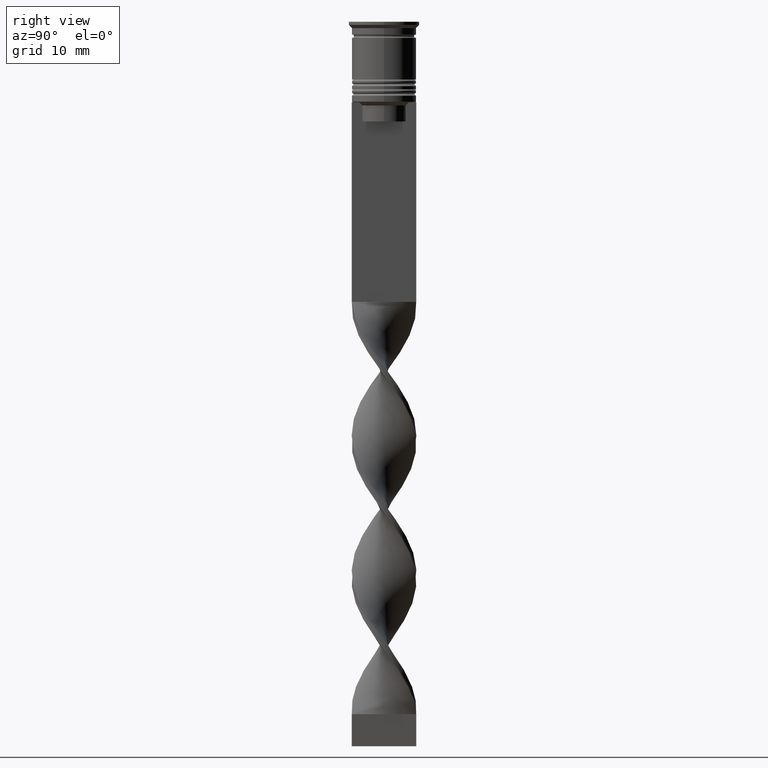
[diagram: clean part render]
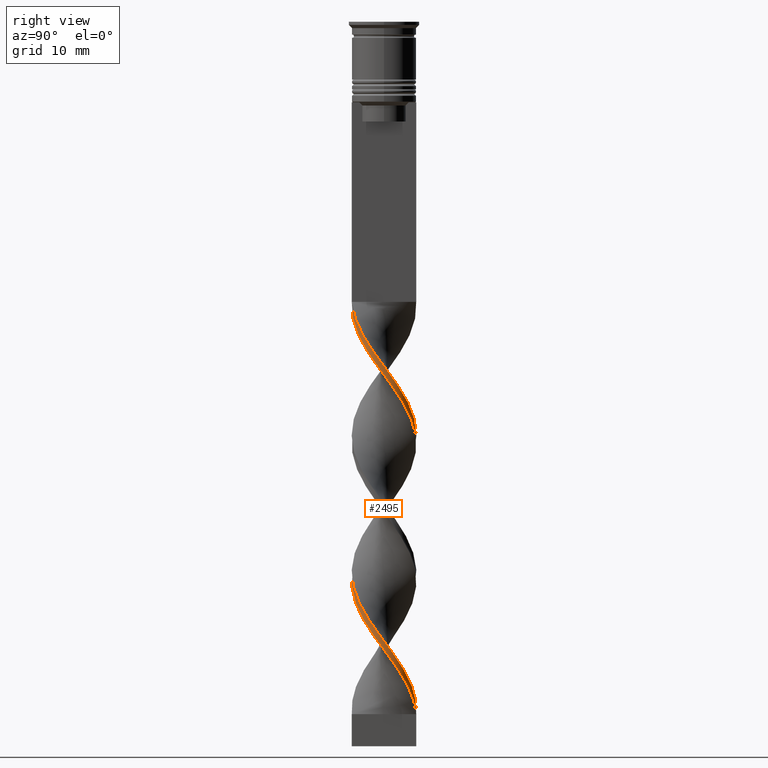
[diagram: same view with one face highlighted and labeled with its STEP entity id]
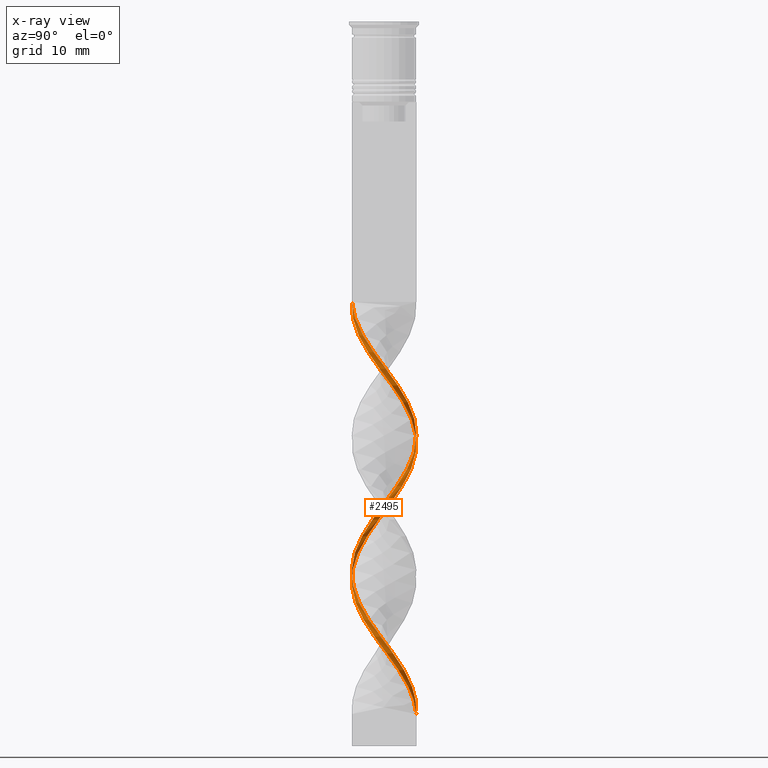
[diagram: x-ray of the same camera — body ghosted, the highlighted face saturated]
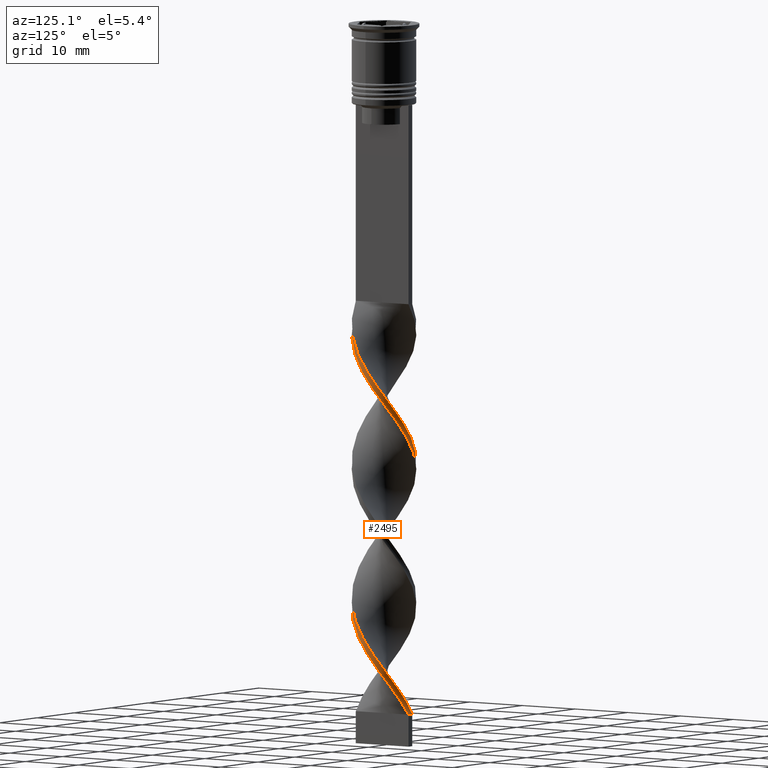
[diagram: same view with one face highlighted and labeled with its STEP entity id]
A machine part, right view. The second image highlights one B-rep face of the part: STEP entity #2495.
The next image is the same camera in x-ray: the body ghosted, the highlighted face saturated — about 0% of this face is hidden behind the body in this view.
A second angle (auxiliary view) of the same face is appended — the face is thin or edge-on in the first view.
In plain terms, the highlighted face is a freeform B-spline surface patch.
Its self-contained STEP definition (entity closure, byte-faithful):
#2 = CARTESIAN_POINT ( 'NONE',  ( -4.903276030362609283, -1.099037838325638727, -76.32051282051281760 ) ) ;
#7 = CARTESIAN_POINT ( 'NONE',  ( -3.275699201900567736, 3.859023582904237415, -68.93589743589743080 ) ) ;
#22 = CARTESIAN_POINT ( 'NONE',  ( 5.023812710617931110, -0.1063289642275889874, -96.01282051282051100 ) ) ;
#26 = CARTESIAN_POINT ( 'NONE',  ( -4.104038128678483055, 2.962961240565979093, -70.57692307692306599 ) ) ;
#38 = CARTESIAN_POINT ( 'NONE',  ( 3.436045048790599132, 3.716969558312884558, -101.7564102564102484 ) ) ;
#42 = CARTESIAN_POINT ( 'NONE',  ( -4.497778769905805163, -2.240532556555384858, -77.96153846153845279 ) ) ;
#62 = CARTESIAN_POINT ( 'NONE',  ( 3.436045048790599132, 3.716969558312884558, -59.08974358974359120 ) ) ;
#81 = CARTESIAN_POINT ( 'NONE',  ( -4.769828676396804745, -1.694403338218441357, -77.14102564102563520 ) ) ;
#88 = VERTEX_POINT ( 'NONE', #3376 ) ;
#96 = CARTESIAN_POINT ( 'NONE',  ( 0.1071099161113025638, -5.060710991611130360, -44.32051282051282470 ) ) ;
#99 = CARTESIAN_POINT ( 'NONE',  ( -3.436045048790596468, 3.716969558312887667, -70.57692307692306599 ) ) ;
#116 = CARTESIAN_POINT ( 'NONE',  ( -5.023812710617931110, -0.1063289642275845326, -76.32051282051281760 ) ) ;
#118 = CARTESIAN_POINT ( 'NONE',  ( 4.225728863414809133, -2.786661774892328136, -93.55128205128204399 ) ) ;
#133 = CARTESIAN_POINT ( 'NONE',  ( -4.497778769905805163, 2.240532556555386634, -73.03846153846153300 ) ) ;
#136 = CARTESIAN_POINT ( 'NONE',  ( 3.830886956102703245, -3.251815666602607013, -92.73076923076922640 ) ) ;
#147 = CARTESIAN_POINT ( 'NONE',  ( 2.941357917118426091, 4.074115069975901449, -102.5769230769230660 ) ) ;
#150 = CARTESIAN_POINT ( 'NONE',  ( -3.436045048790596468, 3.716969558312887667, -70.57692307692306599 ) ) ;
#152 = CARTESIAN_POINT ( 'NONE',  ( -2.446670785446251273, 4.431260581638919227, -68.93589743589743080 ) ) ;
#156 = ORIENTED_EDGE ( 'NONE', *, *, #954, .T. ) ;
#164 = CARTESIAN_POINT ( 'NONE',  ( 1.315104909338224326, 4.888022846936946664, -105.0384615384615330 ) ) ;
#166 = CARTESIAN_POINT ( 'NONE',  ( -1.315104909338220551, 4.888022846936948440, -67.29487179487178139 ) ) ;
#178 = CARTESIAN_POINT ( 'NONE',  ( 2.766343873045447044, -4.194918542244165494, -46.78205128205127750 ) ) ;
#195 = CARTESIAN_POINT ( 'NONE',  ( -2.256988544190328128, -4.530813501584091796, -83.70512820512820440 ) ) ;
#233 = CARTESIAN_POINT ( 'NONE',  ( -2.766343873045450152, -4.194918542244163717, -82.88461538461537259 ) ) ;
#234 = CARTESIAN_POINT ( 'NONE',  ( -4.398951702833859834, 2.428831800708950883, -71.39743589743588359 ) ) ;
#253 = CARTESIAN_POINT ( 'NONE',  ( -1.107109916111301606, 4.939289008388868751, -65.65384615384614619 ) ) ;
#268 = CARTESIAN_POINT ( 'NONE',  ( 4.398951702833859834, -2.428831800708950883, -92.73076923076922640 ) ) ;
#277 = CARTESIAN_POINT ( 'NONE',  ( 3.830886956102703245, 3.251815666602606569, -58.26923076923076650 ) ) ;
#292 = CARTESIAN_POINT ( 'NONE',  ( 3.275699201900567292, -3.859023582904237415, -90.26923076923077360 ) ) ;
#297 = CARTESIAN_POINT ( 'NONE',  ( 1.682049230150814534, -4.735051254986480274, -45.14102564102563520 ) ) ;
#300 = CARTESIAN_POINT ( 'NONE',  ( 5.010902036907447510, 0.7163302668880174862, -55.80769230769230660 ) ) ;
#311 = CARTESIAN_POINT ( 'NONE',  ( 4.497778769905805163, 2.240532556555384414, -99.29487179487178139 ) ) ;
#314 = CARTESIAN_POINT ( 'NONE',  ( 3.689868665289525396, -3.410992411735107588, -91.08974358974359120 ) ) ;
#332 = CARTESIAN_POINT ( 'NONE',  ( 1.880887847392238132, 4.659641714287932501, -61.55128205128204399 ) ) ;
#354 = CARTESIAN_POINT ( 'NONE',  ( 2.446670785446252605, 4.431260581638919227, -60.73076923076922640 ) ) ;
#370 = CARTESIAN_POINT ( 'NONE',  ( -4.903276030362607507, 1.099037838325644723, -74.67948717948718240 ) ) ;
#372 = CARTESIAN_POINT ( 'NONE',  ( 4.497778769905805163, -2.240532556555385746, -51.70512820512820440 ) ) ;
#383 = CARTESIAN_POINT ( 'NONE',  ( 1.107109916111304715, 4.939289008388868751, -64.01282051282051100 ) ) ;
#386 = CARTESIAN_POINT ( 'NONE',  ( 4.497778769905805163, -2.240532556555385746, -94.37179487179486159 ) ) ;
#398 = CARTESIAN_POINT ( 'NONE',  ( 1.880887847392238132, 4.659641714287932501, -104.2179487179487012 ) ) ;
#404 = CARTESIAN_POINT ( 'NONE',  ( 3.830886956102703245, -3.251815666602607013, -50.06410256410256210 ) ) ;
#406 = CARTESIAN_POINT ( 'NONE',  ( 3.275699201900567736, 3.859023582904236527, -103.3974358974358836 ) ) ;
#419 = CARTESIAN_POINT ( 'NONE',  ( 5.010902036907448398, 0.7163302668880174862, -55.80769230769230660 ) ) ;
#422 = CARTESIAN_POINT ( 'NONE',  ( -3.275699201900568625, -3.859023582904236527, -82.06410256410255499 ) ) ;
#431 = CARTESIAN_POINT ( 'NONE',  ( 4.104038128678484831, 2.962961240565976428, -59.08974358974359120 ) ) ;
#433 = CARTESIAN_POINT ( 'NONE',  ( 1.107109916111304937, 4.939289008388868751, -64.01282051282051100 ) ) ;
#449 = CARTESIAN_POINT ( 'NONE',  ( 0.1071099161113025638, -5.060710991611130360, -86.98717948717948900 ) ) ;
#454 = CARTESIAN_POINT ( 'NONE',  ( 0.5000000000000006661, 4.999999999999999112, -107.5000000000000000 ) ) ;
#473 = ORIENTED_EDGE ( 'NONE', *, *, #2879, .F. ) ;
#487 = CARTESIAN_POINT ( 'NONE',  ( 4.104038128678484831, 2.962961240565976428, -101.7564102564102484 ) ) ;
#503 = VERTEX_POINT ( 'NONE', #2978 ) ;
#506 = CARTESIAN_POINT ( 'NONE',  ( 5.036723384328412934, -0.5036723384328417596, -96.83333333333332860 ) ) ;
#508 = CARTESIAN_POINT ( 'NONE',  ( 4.852383656948341617, -1.305516313869971246, -94.37179487179486159 ) ) ;
#529 = CARTESIAN_POINT ( 'NONE',  ( -1.682049230150812980, 4.735051254986481162, -66.47435897435896379 ) ) ;
#547 = CARTESIAN_POINT ( 'NONE',  ( 2.766343873045447044, -4.194918542244165494, -89.44871794871794179 ) ) ;
#552 = CARTESIAN_POINT ( 'NONE',  ( -1.107109916111301828, 4.939289008388868751, -65.65384615384614619 ) ) ;
#565 = CARTESIAN_POINT ( 'NONE',  ( -2.446670785446253493, -4.431260581638918339, -82.06410256410255499 ) ) ;
#573 = CARTESIAN_POINT ( 'NONE',  ( 1.107109916111302717, -4.939289008388868751, -86.98717948717948900 ) ) ;
#578 = CARTESIAN_POINT ( 'NONE',  ( 5.023812710617931110, 0.1063289642275872526, -54.98717948717948190 ) ) ;
#588 = CARTESIAN_POINT ( 'NONE',  ( 4.693865276989234836, -1.894702360851923340, -50.88461538461537970 ) ) ;
#593 = CARTESIAN_POINT ( 'NONE',  ( -2.941357917118426535, -4.074115069975901449, -81.24358974358973740 ) ) ;
#605 = CARTESIAN_POINT ( 'NONE',  ( 2.446670785446252605, 4.431260581638918339, -103.3974358974358836 ) ) ;
#608 = CARTESIAN_POINT ( 'NONE',  ( 5.036723384328412934, 0.5036723384328410935, -54.16666666666665719 ) ) ;
#626 = CARTESIAN_POINT ( 'NONE',  ( -4.398951702833859834, 2.428831800708950883, -71.39743589743588359 ) ) ;
#630 = CARTESIAN_POINT ( 'NONE',  ( 0.1071099161113025777, -5.060710991611129472, -44.32051282051282470 ) ) ;
#644 = CARTESIAN_POINT ( 'NONE',  ( -3.830886956102703245, 3.251815666602607013, -71.39743589743588359 ) ) ;
#661 = CARTESIAN_POINT ( 'NONE',  ( 4.693865276989234836, 1.894702360851922673, -57.44871794871794890 ) ) ;
#664 = CARTESIAN_POINT ( 'NONE',  ( 1.880887847392237244, -4.659641714287933389, -89.44871794871794179 ) ) ;
#676 = CARTESIAN_POINT ( 'NONE',  ( 2.446670785446252161, -4.431260581638920115, -47.60256410256408799 ) ) ;
#679 = CARTESIAN_POINT ( 'NONE',  ( -1.880887847392236800, 4.659641714287933389, -68.11538461538459899 ) ) ;
#693 = CARTESIAN_POINT ( 'NONE',  ( -0.5000000000000000000, -4.999999999999999112, -43.50000000000000000 ) ) ;
#694 = CARTESIAN_POINT ( 'NONE',  ( -1.682049230150818975, -4.735051254986478497, -84.52564102564103621 ) ) ;
#705 = CARTESIAN_POINT ( 'NONE',  ( 0.1071099161113048398, 5.060710991611130360, -106.6794871794871682 ) ) ;
#708 = CARTESIAN_POINT ( 'NONE',  ( -5.023812710617931110, -0.1063289642275845326, -76.32051282051281760 ) ) ;
#718 = CARTESIAN_POINT ( 'NONE',  ( 0.7111074127247642984, 4.974366919274038068, -105.8589743589743506 ) ) ;
#724 = CARTESIAN_POINT ( 'NONE',  ( 2.256988544190328128, 4.530813501584091796, -62.37179487179486870 ) ) ;
#758 = CARTESIAN_POINT ( 'NONE',  ( 3.436045048790597800, -3.716969558312886335, -91.91025641025643722 ) ) ;
#779 = CARTESIAN_POINT ( 'NONE',  ( -2.941357917118426535, -4.074115069975901449, -81.24358974358973740 ) ) ;
#800 = CARTESIAN_POINT ( 'NONE',  ( 4.769828676396803857, 1.694403338218442689, -55.80769230769230660 ) ) ;
#818 = CARTESIAN_POINT ( 'NONE',  ( -4.693865276989233060, 1.894702360851926004, -72.21794871794871540 ) ) ;
#837 = CARTESIAN_POINT ( 'NONE',  ( 1.107109916111302717, -4.939289008388868751, -86.98717948717948900 ) ) ;
#844 = CARTESIAN_POINT ( 'NONE',  ( 1.682049230150814534, -4.735051254986480274, -87.80769230769230660 ) ) ;
#847 = CARTESIAN_POINT ( 'NONE',  ( 4.903276030362607507, -1.099037838325642946, -53.34615384615383959 ) ) ;
#860 = CARTESIAN_POINT ( 'NONE',  ( 4.104038128678484831, -2.962961240565978205, -49.24358974358974450 ) ) ;
#867 = CARTESIAN_POINT ( 'NONE',  ( 2.941357917118426091, 4.074115069975901449, -59.91025641025640880 ) ) ;
#888 = CARTESIAN_POINT ( 'NONE',  ( -4.852383656948341617, 1.305516313869971912, -73.03846153846153300 ) ) ;
#923 = CARTESIAN_POINT ( 'NONE',  ( -2.446670785446253493, -4.431260581638919227, -82.06410256410255499 ) ) ;
#925 = CARTESIAN_POINT ( 'NONE',  ( 3.436045048790597800, -3.716969558312886335, -49.24358974358974450 ) ) ;
#941 = CARTESIAN_POINT ( 'NONE',  ( 5.036723384328412934, 0.5036723384328410935, -96.83333333333332860 ) ) ;
#943 = CARTESIAN_POINT ( 'NONE',  ( -0.5000000000000000000, -4.999999999999999112, -86.16666666666667140 ) ) ;
#954 = EDGE_CURVE ( 'NONE', #503, #1031, #1861, .T. ) ;
#959 = CARTESIAN_POINT ( 'NONE',  ( -4.693865276989234836, -1.894702360851920009, -78.78205128205127039 ) ) ;
#961 = CARTESIAN_POINT ( 'NONE',  ( -3.689868665289527172, -3.410992411735105367, -81.24358974358973740 ) ) ;
#964 = CARTESIAN_POINT ( 'NONE',  ( -0.4999999999999993339, 4.999999999999999112, -107.5000000000000000 ) ) ;
#970 = CARTESIAN_POINT ( 'NONE',  ( -2.941357917118423870, 4.074115069975903225, -69.75641025641024839 ) ) ;
#971 = CARTESIAN_POINT ( 'NONE',  ( 2.256988544190326351, -4.530813501584092684, -45.96153846153845990 ) ) ;
#972 = CARTESIAN_POINT ( 'NONE',  ( -0.7111074127247609677, 4.974366919274038956, -66.47435897435896379 ) ) ;
#985 = CARTESIAN_POINT ( 'NONE',  ( 5.023812710617931110, -0.1063289642275889874, -96.01282051282051100 ) ) ;
#988 = CARTESIAN_POINT ( 'NONE',  ( 2.941357917118423870, -4.074115069975903225, -91.08974358974359120 ) ) ;
#1003 = CARTESIAN_POINT ( 'NONE',  ( 0.5000000000000000000, -4.999999999999999112, -43.50000000000000000 ) ) ;
#1004 = CARTESIAN_POINT ( 'NONE',  ( -3.830886956102703245, 3.251815666602607013, -71.39743589743588359 ) ) ;
#1031 = VERTEX_POINT ( 'NONE', #1119 ) ;
#1037 = ORIENTED_EDGE ( 'NONE', *, *, #1911, .T. ) ;
#1061 = CARTESIAN_POINT ( 'NONE',  ( 5.023812710617931110, 0.1063289642275872526, -97.65384615384614619 ) ) ;
#1063 = CARTESIAN_POINT ( 'NONE',  ( 0.5000000000000000000, -4.999999999999999112, -86.16666666666667140 ) ) ;
#1082 = CARTESIAN_POINT ( 'NONE',  ( -3.689868665289527172, -3.410992411735105367, -81.24358974358973740 ) ) ;
#1083 = CARTESIAN_POINT ( 'NONE',  ( -5.010902036907447510, 0.7163302668880177082, -73.85897435897436480 ) ) ;
#1102 = CARTESIAN_POINT ( 'NONE',  ( 4.497778769905805163, 2.240532556555384414, -56.62820512820513130 ) ) ;
#1119 = CARTESIAN_POINT ( 'NONE',  ( 0.5000000000000006661, 4.999999999999999112, -107.5000000000000000 ) ) ;
#1123 = CARTESIAN_POINT ( 'NONE',  ( -1.880887847392241019, -4.659641714287931613, -82.88461538461537259 ) ) ;
#1126 = CARTESIAN_POINT ( 'NONE',  ( -2.256988544190325019, 4.530813501584093572, -67.29487179487178139 ) ) ;
#1142 = CARTESIAN_POINT ( 'NONE',  ( 4.903276030362607507, 1.099037838325641392, -97.65384615384614619 ) ) ;
#1147 = CARTESIAN_POINT ( 'NONE',  ( -4.903276030362609283, -1.099037838325638727, -76.32051282051281760 ) ) ;
#1150 = CARTESIAN_POINT ( 'NONE',  ( 0.7111074127247624110, -4.974366919274038068, -45.14102564102563520 ) ) ;
#1161 = CARTESIAN_POINT ( 'NONE',  ( 1.315104909338224104, 4.888022846936946664, -105.0384615384615188 ) ) ;
#1169 = CARTESIAN_POINT ( 'NONE',  ( -0.7111074127247671850, -4.974366919274038068, -84.52564102564103621 ) ) ;
#1190 = CARTESIAN_POINT ( 'NONE',  ( 4.398951702833859834, -2.428831800708950883, -50.06410256410256210 ) ) ;
#1208 = CARTESIAN_POINT ( 'NONE',  ( -3.689868665289524952, 3.410992411735108476, -69.75641025641024839 ) ) ;
#1222 = CARTESIAN_POINT ( 'NONE',  ( 4.398951702833859834, -2.428831800708950883, -92.73076923076922640 ) ) ;
#1225 = CARTESIAN_POINT ( 'NONE',  ( -2.256988544190328572, -4.530813501584091796, -83.70512820512820440 ) ) ;
#1242 = CARTESIAN_POINT ( 'NONE',  ( -5.010902036907449286, -0.7163302668880155988, -77.14102564102563520 ) ) ;
#1244 = CARTESIAN_POINT ( 'NONE',  ( 5.023812710617931110, 0.1063289642275872526, -97.65384615384614619 ) ) ;
#1255 = CARTESIAN_POINT ( 'NONE',  ( 0.1071099161113048537, 5.060710991611129472, -106.6794871794871824 ) ) ;
#1260 = CARTESIAN_POINT ( 'NONE',  ( -2.446670785446251273, 4.431260581638920115, -68.93589743589743080 ) ) ;
#1272 = CARTESIAN_POINT ( 'NONE',  ( 1.880887847392238132, 4.659641714287932501, -104.2179487179487012 ) ) ;
#1275 = CARTESIAN_POINT ( 'NONE',  ( -5.036723384328413822, 0.5036723384328424258, -75.50000000000000000 ) ) ;
#1292 = CARTESIAN_POINT ( 'NONE',  ( 1.880887847392237244, -4.659641714287933389, -46.78205128205127750 ) ) ;
#1295 = CARTESIAN_POINT ( 'NONE',  ( -2.766343873045450152, -4.194918542244163717, -82.88461538461537259 ) ) ;
#1313 = CARTESIAN_POINT ( 'NONE',  ( 3.275699201900567292, -3.859023582904237415, -47.60256410256409509 ) ) ;
#1328 = CARTESIAN_POINT ( 'NONE',  ( -3.275699201900568625, -3.859023582904236527, -82.06410256410255499 ) ) ;
#1366 = CARTESIAN_POINT ( 'NONE',  ( 2.941357917118426091, 4.074115069975901449, -59.91025641025640880 ) ) ;
#1385 = CARTESIAN_POINT ( 'NONE',  ( -1.107109916111305381, -4.939289008388868751, -85.34615384615383959 ) ) ;
#1386 = CARTESIAN_POINT ( 'NONE',  ( -4.225728863414810910, -2.786661774892325028, -78.78205128205127039 ) ) ;
#1407 = CARTESIAN_POINT ( 'NONE',  ( -2.766343873045446600, 4.194918542244165494, -68.11538461538459899 ) ) ;
#1413 = CARTESIAN_POINT ( 'NONE',  ( 4.852383656948341617, -1.305516313869971246, -51.70512820512820440 ) ) ;
#1425 = CARTESIAN_POINT ( 'NONE',  ( 5.010902036907448398, -0.7163302668880181523, -95.19230769230769340 ) ) ;
#1430 = CARTESIAN_POINT ( 'NONE',  ( 5.010902036907449286, -0.7163302668880181523, -52.52564102564103621 ) ) ;
#1433 = CARTESIAN_POINT ( 'NONE',  ( 4.852383656948341617, 1.305516313869969469, -56.62820512820513130 ) ) ;
#1443 = CARTESIAN_POINT ( 'NONE',  ( 4.225728863414809133, 2.786661774892327692, -100.1153846153846132 ) ) ;
#1450 = CARTESIAN_POINT ( 'NONE',  ( 4.497778769905805163, 2.240532556555384414, -56.62820512820513130 ) ) ;
#1470 = CARTESIAN_POINT ( 'NONE',  ( 0.5000000000000000000, -4.999999999999999112, -43.50000000000000000 ) ) ;
#1489 = CARTESIAN_POINT ( 'NONE',  ( -4.693865276989233060, 1.894702360851926226, -72.21794871794871540 ) ) ;
#1504 = CARTESIAN_POINT ( 'NONE',  ( -0.7111074127247609677, 4.974366919274038956, -66.47435897435896379 ) ) ;
#1507 = CARTESIAN_POINT ( 'NONE',  ( 4.769828676396802969, -1.694403338218443578, -52.52564102564102910 ) ) ;
#1520 = CARTESIAN_POINT ( 'NONE',  ( 0.5000000000000006661, 4.999999999999999112, -64.83333333333332860 ) ) ;
#1524 = CARTESIAN_POINT ( 'NONE',  ( 4.769828676396802969, -1.694403338218443578, -95.19230769230769340 ) ) ;
#1531 = CARTESIAN_POINT ( 'NONE',  ( 0.1666666666666673513, 4.999999999999999112, -107.5000000000000000 ) ) ;
#1540 = CARTESIAN_POINT ( 'NONE',  ( 3.436045048790599132, 3.716969558312884558, -101.7564102564102484 ) ) ;
#1542 = CARTESIAN_POINT ( 'NONE',  ( 5.010902036907447510, 0.7163302668880174862, -98.47435897435896379 ) ) ;
#1559 = CARTESIAN_POINT ( 'NONE',  ( 3.275699201900568180, 3.859023582904236527, -60.73076923076922640 ) ) ;
#1561 = CARTESIAN_POINT ( 'NONE',  ( 0.1071099161113025777, -5.060710991611129472, -86.98717948717948900 ) ) ;
#1573 = CARTESIAN_POINT ( 'NONE',  ( -0.4999999999999993339, 4.999999999999999112, -107.5000000000000000 ) ) ;
#1575 = CARTESIAN_POINT ( 'NONE',  ( -4.398951702833860722, -2.428831800708949551, -79.60256410256410220 ) ) ;
#1592 = CARTESIAN_POINT ( 'NONE',  ( 3.275699201900568180, 3.859023582904236527, -103.3974358974358694 ) ) ;
#1627 = CARTESIAN_POINT ( 'NONE',  ( 2.766343873045447488, 4.194918542244164605, -104.2179487179487012 ) ) ;
#1651 = CARTESIAN_POINT ( 'NONE',  ( -5.036723384328413822, -0.5036723384328405384, -75.50000000000000000 ) ) ;
#1669 = CARTESIAN_POINT ( 'NONE',  ( 3.689868665289525396, -3.410992411735107588, -48.42307692307691269 ) ) ;
#1687 = CARTESIAN_POINT ( 'NONE',  ( -3.689868665289524952, 3.410992411735108476, -69.75641025641024839 ) ) ;
#1693 = CARTESIAN_POINT ( 'NONE',  ( 4.104038128678483943, -2.962961240565977761, -49.24358974358973740 ) ) ;
#1707 = CARTESIAN_POINT ( 'NONE',  ( 4.693865276989234836, -1.894702360851923340, -93.55128205128204399 ) ) ;
#1715 = CARTESIAN_POINT ( 'NONE',  ( 5.023812710617931110, -0.1063289642275889874, -53.34615384615383959 ) ) ;
#1726 = CARTESIAN_POINT ( 'NONE',  ( 5.036723384328413822, 0.5036723384328410935, -96.83333333333332860 ) ) ;
#1732 = CARTESIAN_POINT ( 'NONE',  ( 0.5000000000000000000, -4.999999999999999112, -86.16666666666667140 ) ) ;
#1747 = CARTESIAN_POINT ( 'NONE',  ( 3.830886956102703245, 3.251815666602606569, -100.9358974358974308 ) ) ;
#1752 = CARTESIAN_POINT ( 'NONE',  ( 1.315104909338224326, 4.888022846936946664, -62.37179487179486870 ) ) ;
#1771 = CARTESIAN_POINT ( 'NONE',  ( -5.023812710617931110, 0.1063289642275907221, -74.67948717948718240 ) ) ;
#1777 = CARTESIAN_POINT ( 'NONE',  ( 1.880887847392237244, -4.659641714287933389, -46.78205128205127750 ) ) ;
#1782 = LINE ( 'NONE', #3475, #2187 ) ;
#1789 = CARTESIAN_POINT ( 'NONE',  ( -4.225728863414807357, 2.786661774892329912, -72.21794871794871540 ) ) ;
#1803 = CARTESIAN_POINT ( 'NONE',  ( 4.398951702833859834, 2.428831800708949995, -58.26923076923076650 ) ) ;
#1805 = CARTESIAN_POINT ( 'NONE',  ( 0.7111074127247624110, -4.974366919274038068, -87.80769230769230660 ) ) ;
#1818 = CARTESIAN_POINT ( 'NONE',  ( -4.398951702833860722, -2.428831800708949551, -79.60256410256410220 ) ) ;
#1822 = CARTESIAN_POINT ( 'NONE',  ( -1.107109916111305603, -4.939289008388868751, -85.34615384615385381 ) ) ;
#1837 = CARTESIAN_POINT ( 'NONE',  ( 4.497778769905805163, 2.240532556555384414, -99.29487179487178139 ) ) ;
#1854 = CARTESIAN_POINT ( 'NONE',  ( 4.769828676396803857, 1.694403338218442912, -98.47435897435896379 ) ) ;
#1856 = CARTESIAN_POINT ( 'NONE',  ( 5.036723384328413822, -0.5036723384328417596, -96.83333333333332860 ) ) ;
#1861 =( BOUNDED_CURVE ( )  B_SPLINE_CURVE ( 2, ( #3204, #630, #1150, #2932, #1777, #2915, #2300, #925, #2861, #3222, #372, #1507, #847, #1996, #578, #300, #1433, #2583, #2671, #2374, #2705, #3555, #2158, #724, #3018, #433, #2092, #3521, #972, #166, #679, #152, #2406, #99, #1004, #2722, #3572, #2125, #2140, #1275, #708, #2657, #3539, #2391, #1575, #3269, #961, #422, #1295, #1225, #694, #1822, #943, #1561, #1805, #3237, #664, #2423, #988, #2946, #136, #118, #386, #1524, #3279, #1856, #1244, #1542, #2109, #3254, #2999, #2689, #2440, #406, #3588, #3299, #1871, #2982, #454 ),
 .UNSPECIFIED., .F., .T. ) 
 B_SPLINE_CURVE_WITH_KNOTS ( ( 3, 2, 2, 2, 2, 2, 2, 2, 2, 2, 2, 2, 2, 2, 2, 2, 2, 2, 2, 2, 2, 2, 2, 2, 2, 2, 2, 2, 2, 2, 2, 2, 2, 2, 2, 2, 2, 2, 2, 3 ),
 ( 0.000000000000000000, 0.01923076923076923184, 0.03846153846153846367, 0.05769230769230768857, 0.07692307692307692735, 0.09615384615384615918, 0.1153846153846153771, 0.1346153846153846090, 0.1538461538461538547, 0.1730769230769230449, 0.1923076923076923184, 0.2115384615384615363, 0.2307692307692307543, 0.2500000000000000000, 0.2692307692307692180, 0.2884615384615384359, 0.3076923076923077094, 0.3269230769230769273, 0.3461538461538460898, 0.3653846153846153633, 0.3846153846153846367, 0.4038461538461539102, 0.4230769230769230727, 0.4423076923076922906, 0.4615384615384615086, 0.4807692307692307820, 0.5000000000000000000, 0.5192307692307692735, 0.5384615384615384359, 0.5576923076923077094, 0.5769230769230768718, 0.5961538461538461453, 0.6153846153846154188, 0.6346153846153845812, 0.6538461538461538547, 0.6730769230769230171, 0.6923076923076921796, 0.7115384615384615641, 0.7307692307692307265, 0.7500000000000000000 ),
 .UNSPECIFIED. ) 
 CURVE ( )  GEOMETRIC_REPRESENTATION_ITEM ( )  RATIONAL_B_SPLINE_CURVE ( ( 1.000000000000000000, 0.9927088740980539727, 1.000000000000000000, 0.9927088740980539727, 1.000000000000000000, 0.9927088740980539727, 1.000000000000000000, 0.9927088740980539727, 1.000000000000000000, 0.9927088740980539727, 1.000000000000000000, 0.9927088740980539727, 1.000000000000000000, 0.9927088740980539727, 1.000000000000000000, 0.9927088740980539727, 1.000000000000000000, 0.9927088740980539727, 1.000000000000000000, 0.9927088740980539727, 1.000000000000000000, 0.9927088740980539727, 1.000000000000000000, 0.9927088740980539727, 1.000000000000000000, 0.9927088740980539727, 1.000000000000000000, 0.9927088740980539727, 1.000000000000000000, 0.9927088740980539727, 1.000000000000000000, 0.9927088740980539727, 1.000000000000000000, 0.9927088740980539727, 1.000000000000000000, 0.9927088740980539727, 1.000000000000000000, 0.9927088740980539727, 1.000000000000000000, 0.9927088740980539727, 1.000000000000000000, 0.9927088740980539727, 1.000000000000000000, 0.9927088740980539727, 1.000000000000000000, 0.9927088740980539727, 1.000000000000000000, 0.9927088740980539727, 1.000000000000000000, 0.9927088740980539727, 1.000000000000000000, 0.9927088740980539727, 1.000000000000000000, 0.9927088740980539727, 1.000000000000000000, 0.9927088740980539727, 1.000000000000000000, 0.9927088740980539727, 1.000000000000000000, 0.9927088740980539727, 1.000000000000000000, 0.9927088740980539727, 1.000000000000000000, 0.9927088740980539727, 1.000000000000000000, 0.9927088740980539727, 1.000000000000000000, 0.9927088740980539727, 1.000000000000000000, 0.9927088740980539727, 1.000000000000000000, 0.9927088740980539727, 1.000000000000000000, 0.9927088740980539727, 1.000000000000000000, 0.9927088740980539727, 1.000000000000000000, 0.9927088740980539727, 1.000000000000000000 ) ) 
 REPRESENTATION_ITEM ( '' )  );
#1869 = CARTESIAN_POINT ( 'NONE',  ( 0.7111074127247624110, -4.974366919274038068, -87.80769230769230660 ) ) ;
#1871 = CARTESIAN_POINT ( 'NONE',  ( 1.682049230150816088, 4.735051254986480274, -105.8589743589743506 ) ) ;
#1889 = CARTESIAN_POINT ( 'NONE',  ( 1.107109916111304715, 4.939289008388868751, -106.6794871794871682 ) ) ;
#1907 = CARTESIAN_POINT ( 'NONE',  ( 4.903276030362607507, -1.099037838325642946, -96.01282051282051100 ) ) ;
#1911 = EDGE_CURVE ( 'NONE', #88, #503, #1782, .T. ) ;
#1926 = CARTESIAN_POINT ( 'NONE',  ( 4.769828676396802969, -1.694403338218443800, -95.19230769230769340 ) ) ;
#1927 = CARTESIAN_POINT ( 'NONE',  ( 4.852383656948341617, -1.305516313869971246, -51.70512820512820440 ) ) ;
#1947 = CARTESIAN_POINT ( 'NONE',  ( 1.682049230150816088, 4.735051254986480274, -105.8589743589743506 ) ) ;
#1948 = CARTESIAN_POINT ( 'NONE',  ( 5.023812710617931110, -0.1063289642275889874, -53.34615384615383959 ) ) ;
#1967 = CARTESIAN_POINT ( 'NONE',  ( -4.769828676396803857, -1.694403338218441135, -77.14102564102563520 ) ) ;
#1987 = CARTESIAN_POINT ( 'NONE',  ( 1.880887847392238132, 4.659641714287932501, -61.55128205128204399 ) ) ;
#1993 = CARTESIAN_POINT ( 'NONE',  ( 2.256988544190325907, -4.530813501584092684, -88.62820512820513841 ) ) ;
#1996 = CARTESIAN_POINT ( 'NONE',  ( 5.036723384328413822, -0.5036723384328417596, -54.16666666666666430 ) ) ;
#2010 = CARTESIAN_POINT ( 'NONE',  ( -2.256988544190325019, 4.530813501584093572, -67.29487179487178139 ) ) ;
#2018 = CARTESIAN_POINT ( 'NONE',  ( -2.766343873045446600, 4.194918542244165494, -68.11538461538459899 ) ) ;
#2044 = DIRECTION ( 'NONE',  ( -1.000000000000000000, 0.000000000000000000, 0.000000000000000000 ) ) ;
#2070 = CARTESIAN_POINT ( 'NONE',  ( 4.693865276989234836, -1.894702360851923117, -93.55128205128204399 ) ) ;
#2090 = CARTESIAN_POINT ( 'NONE',  ( 3.436045048790597800, -3.716969558312886335, -49.24358974358973740 ) ) ;
#2092 = CARTESIAN_POINT ( 'NONE',  ( 0.5000000000000006661, 4.999999999999999112, -64.83333333333332860 ) ) ;
#2106 = CARTESIAN_POINT ( 'NONE',  ( 5.010902036907449286, -0.7163302668880181523, -95.19230769230769340 ) ) ;
#2109 = CARTESIAN_POINT ( 'NONE',  ( 4.852383656948341617, 1.305516313869969469, -99.29487179487178139 ) ) ;
#2121 = CARTESIAN_POINT ( 'NONE',  ( 5.036723384328412934, -0.5036723384328417596, -54.16666666666665719 ) ) ;
#2125 = CARTESIAN_POINT ( 'NONE',  ( -4.769828676396803857, 1.694403338218443134, -73.85897435897436480 ) ) ;
#2138 = CARTESIAN_POINT ( 'NONE',  ( 4.225728863414809133, -2.786661774892327692, -50.88461538461538680 ) ) ;
#2140 = CARTESIAN_POINT ( 'NONE',  ( -4.903276030362607507, 1.099037838325644723, -74.67948717948718240 ) ) ;
#2156 = CARTESIAN_POINT ( 'NONE',  ( 3.830886956102703245, -3.251815666602607013, -92.73076923076922640 ) ) ;
#2158 = CARTESIAN_POINT ( 'NONE',  ( 2.766343873045447488, 4.194918542244164605, -61.55128205128204399 ) ) ;
#2187 = VECTOR ( 'NONE', #2044, 1000.000000000000000 ) ;
#2213 = CARTESIAN_POINT ( 'NONE',  ( 2.941357917118423870, -4.074115069975903225, -91.08974358974359120 ) ) ;
#2215 = CARTESIAN_POINT ( 'NONE',  ( -1.315104909338224548, -4.888022846936946664, -83.70512820512820440 ) ) ;
#2232 = CARTESIAN_POINT ( 'NONE',  ( 1.880887847392237244, -4.659641714287933389, -89.44871794871794179 ) ) ;
#2233 = CARTESIAN_POINT ( 'NONE',  ( -3.830886956102704577, -3.251815666602606125, -79.60256410256410220 ) ) ;
#2256 = CARTESIAN_POINT ( 'NONE',  ( 2.446670785446252605, 4.431260581638918339, -60.73076923076922640 ) ) ;
#2275 = CARTESIAN_POINT ( 'NONE',  ( -0.4999999999999993339, 4.999999999999999112, -64.83333333333332860 ) ) ;
#2279 = CARTESIAN_POINT ( 'NONE',  ( -0.4999999999999993339, 4.999999999999999112, -64.83333333333332860 ) ) ;
#2294 = CARTESIAN_POINT ( 'NONE',  ( 4.398951702833859834, -2.428831800708950883, -50.06410256410256210 ) ) ;
#2297 = CARTESIAN_POINT ( 'NONE',  ( 3.275699201900567736, -3.859023582904237415, -47.60256410256408799 ) ) ;
#2300 = CARTESIAN_POINT ( 'NONE',  ( 2.941357917118423870, -4.074115069975903225, -48.42307692307691269 ) ) ;
#2302 = ORIENTED_EDGE ( 'NONE', *, *, #3189, .F. ) ;
#2321 = CARTESIAN_POINT ( 'NONE',  ( -0.1071099161113053949, -5.060710991611130360, -85.34615384615383959 ) ) ;
#2336 = CARTESIAN_POINT ( 'NONE',  ( 0.1071099161113048398, 5.060710991611130360, -64.01282051282051100 ) ) ;
#2356 = CARTESIAN_POINT ( 'NONE',  ( -4.225728863414810910, -2.786661774892325028, -78.78205128205127039 ) ) ;
#2371 = CARTESIAN_POINT ( 'NONE',  ( 2.941357917118423870, -4.074115069975903225, -48.42307692307691269 ) ) ;
#2374 = CARTESIAN_POINT ( 'NONE',  ( 4.104038128678485720, 2.962961240565976428, -59.08974358974358410 ) ) ;
#2389 = CARTESIAN_POINT ( 'NONE',  ( -4.852383656948341617, -1.305516313869969913, -77.96153846153845279 ) ) ;
#2391 = CARTESIAN_POINT ( 'NONE',  ( -4.693865276989234836, -1.894702360851920231, -78.78205128205127039 ) ) ;
#2405 = CARTESIAN_POINT ( 'NONE',  ( 4.225728863414809133, 2.786661774892327248, -100.1153846153846274 ) ) ;
#2406 = CARTESIAN_POINT ( 'NONE',  ( -2.941357917118423870, 4.074115069975903225, -69.75641025641024839 ) ) ;
#2420 = CARTESIAN_POINT ( 'NONE',  ( 4.903276030362607507, 1.099037838325641392, -97.65384615384614619 ) ) ;
#2423 = CARTESIAN_POINT ( 'NONE',  ( 2.446670785446252161, -4.431260581638919227, -90.26923076923077360 ) ) ;
#2437 = CARTESIAN_POINT ( 'NONE',  ( 5.023812710617931110, 0.1063289642275872526, -54.98717948717948190 ) ) ;
#2440 = CARTESIAN_POINT ( 'NONE',  ( 3.689868665289526728, 3.410992411735105811, -102.5769230769230660 ) ) ;
#2495 = ADVANCED_FACE ( 'NONE', ( #2595 ), #3011, .T. ) ;
#2497 = CARTESIAN_POINT ( 'NONE',  ( 1.682049230150814534, -4.735051254986480274, -45.14102564102563520 ) ) ;
#2516 = CARTESIAN_POINT ( 'NONE',  ( -0.5000000000000000000, -4.999999999999999112, -86.16666666666667140 ) ) ;
#2519 = CARTESIAN_POINT ( 'NONE',  ( 5.010902036907448398, -0.7163302668880181523, -52.52564102564102910 ) ) ;
#2534 = CARTESIAN_POINT ( 'NONE',  ( -0.7111074127247671850, -4.974366919274038068, -84.52564102564103621 ) ) ;
#2556 = CARTESIAN_POINT ( 'NONE',  ( -4.852383656948341617, 1.305516313869971912, -73.03846153846153300 ) ) ;
#2561 = CARTESIAN_POINT ( 'NONE',  ( 3.689868665289525396, -3.410992411735107588, -48.42307692307691269 ) ) ;
#2574 = CARTESIAN_POINT ( 'NONE',  ( 2.256988544190326351, -4.530813501584092684, -88.62820512820512420 ) ) ;
#2579 = CARTESIAN_POINT ( 'NONE',  ( 4.225728863414809133, 2.786661774892327248, -57.44871794871794890 ) ) ;
#2583 = CARTESIAN_POINT ( 'NONE',  ( 4.693865276989234836, 1.894702360851922895, -57.44871794871794890 ) ) ;
#2595 = FACE_OUTER_BOUND ( 'NONE', #3427, .T. ) ;
#2617 = CARTESIAN_POINT ( 'NONE',  ( 0.7111074127247642984, 4.974366919274038068, -63.19230769230768630 ) ) ;
#2638 = CARTESIAN_POINT ( 'NONE',  ( -5.036723384328412934, -0.5036723384328404274, -75.49999999999998579 ) ) ;
#2648 = CARTESIAN_POINT ( 'NONE',  ( 0.5000000000000006661, 4.999999999999999112, -107.5000000000000000 ) ) ;
#2654 = CARTESIAN_POINT ( 'NONE',  ( -5.036723384328412934, 0.5036723384328424258, -75.49999999999998579 ) ) ;
#2657 = CARTESIAN_POINT ( 'NONE',  ( -5.010902036907448398, -0.7163302668880155988, -77.14102564102563520 ) ) ;
#2669 = CARTESIAN_POINT ( 'NONE',  ( -1.315104909338220551, 4.888022846936948440, -67.29487179487178139 ) ) ;
#2671 = CARTESIAN_POINT ( 'NONE',  ( 4.398951702833859834, 2.428831800708949995, -58.26923076923076650 ) ) ;
#2687 = CARTESIAN_POINT ( 'NONE',  ( -1.880887847392236800, 4.659641714287933389, -68.11538461538459899 ) ) ;
#2689 = CARTESIAN_POINT ( 'NONE',  ( 4.104038128678485720, 2.962961240565976428, -101.7564102564102484 ) ) ;
#2703 = CARTESIAN_POINT ( 'NONE',  ( 2.446670785446252605, 4.431260581638919227, -103.3974358974358694 ) ) ;
#2705 = CARTESIAN_POINT ( 'NONE',  ( 3.689868665289526728, 3.410992411735105811, -59.91025641025640880 ) ) ;
#2717 = CARTESIAN_POINT ( 'NONE',  ( 4.903276030362607507, -1.099037838325642946, -53.34615384615383959 ) ) ;
#2722 = CARTESIAN_POINT ( 'NONE',  ( -4.225728863414807357, 2.786661774892330357, -72.21794871794871540 ) ) ;
#2747 = CARTESIAN_POINT ( 'NONE',  ( -0.4999999999999993339, 4.999999999999999112, -107.5000000000000000 ) ) ;
#2752 = CARTESIAN_POINT ( 'NONE',  ( 2.446670785446252161, -4.431260581638920115, -90.26923076923075939 ) ) ;
#2768 = CARTESIAN_POINT ( 'NONE',  ( 2.256988544190327683, 4.530813501584091796, -105.0384615384615330 ) ) ;
#2793 = CARTESIAN_POINT ( 'NONE',  ( 5.010902036907448398, 0.7163302668880174862, -98.47435897435896379 ) ) ;
#2794 = CARTESIAN_POINT ( 'NONE',  ( 4.225728863414809133, 2.786661774892327692, -57.44871794871794890 ) ) ;
#2811 = CARTESIAN_POINT ( 'NONE',  ( 5.036723384328413822, 0.5036723384328410935, -54.16666666666666430 ) ) ;
#2828 = CARTESIAN_POINT ( 'NONE',  ( -4.497778769905805163, -2.240532556555384858, -77.96153846153845279 ) ) ;
#2835 = CARTESIAN_POINT ( 'NONE',  ( 4.693865276989234836, -1.894702360851923117, -50.88461538461538680 ) ) ;
#2851 = CARTESIAN_POINT ( 'NONE',  ( 1.315104909338224104, 4.888022846936946664, -62.37179487179486870 ) ) ;
#2857 = CARTESIAN_POINT ( 'NONE',  ( 4.903276030362607507, 1.099037838325641392, -54.98717948717948190 ) ) ;
#2861 = CARTESIAN_POINT ( 'NONE',  ( 3.830886956102703245, -3.251815666602607013, -50.06410256410256210 ) ) ;
#2868 = CARTESIAN_POINT ( 'NONE',  ( 4.769828676396803857, 1.694403338218442689, -98.47435897435896379 ) ) ;
#2874 = CARTESIAN_POINT ( 'NONE',  ( 3.275699201900567736, -3.859023582904237415, -90.26923076923075939 ) ) ;
#2879 = EDGE_CURVE ( 'NONE', #3517, #1031, #2998, .T. ) ;
#2886 = CARTESIAN_POINT ( 'NONE',  ( -0.4999999999999993339, 4.999999999999999112, -107.5000000000000000 ) ) ;
#2889 = CARTESIAN_POINT ( 'NONE',  ( 1.107109916111302717, -4.939289008388868751, -44.32051282051282470 ) ) ;
#2913 = CARTESIAN_POINT ( 'NONE',  ( 2.256988544190325907, -4.530813501584092684, -45.96153846153845279 ) ) ;
#2915 = CARTESIAN_POINT ( 'NONE',  ( 2.446670785446252161, -4.431260581638919227, -47.60256410256409509 ) ) ;
#2928 = CARTESIAN_POINT ( 'NONE',  ( -4.769828676396803857, 1.694403338218443356, -73.85897435897436480 ) ) ;
#2932 = CARTESIAN_POINT ( 'NONE',  ( 1.315104909338222328, -4.888022846936947552, -45.96153846153845990 ) ) ;
#2943 = CARTESIAN_POINT ( 'NONE',  ( 3.689868665289526728, 3.410992411735105811, -59.91025641025640880 ) ) ;
#2946 = CARTESIAN_POINT ( 'NONE',  ( 3.436045048790597800, -3.716969558312886335, -91.91025641025643722 ) ) ;
#2963 = CARTESIAN_POINT ( 'NONE',  ( -0.1071099161113013842, 5.060710991611130360, -65.65384615384614619 ) ) ;
#2978 = CARTESIAN_POINT ( 'NONE',  ( -0.5000000000000000000, -4.999999999999999112, -43.50000000000000000 ) ) ;
#2979 = CARTESIAN_POINT ( 'NONE',  ( 4.852383656948341617, -1.305516313869971246, -94.37179487179486159 ) ) ;
#2982 = CARTESIAN_POINT ( 'NONE',  ( 1.107109916111304937, 4.939289008388868751, -106.6794871794871824 ) ) ;
#2996 = CARTESIAN_POINT ( 'NONE',  ( 4.769828676396802969, -1.694403338218443800, -52.52564102564103621 ) ) ;
#2998 = B_SPLINE_CURVE_WITH_KNOTS ( 'NONE', 3,
 ( #964, #3544, #1531, #2648 ),
 .UNSPECIFIED., .F., .F.,
 ( 4, 4 ),
 ( 0.000000000000000000, 1.000000000000000000 ),
 .UNSPECIFIED. ) ;
#2999 = CARTESIAN_POINT ( 'NONE',  ( 4.398951702833859834, 2.428831800708949995, -100.9358974358974308 ) ) ;
#3011 =( BOUNDED_SURFACE ( )  B_SPLINE_SURFACE ( 1, 2, ( 
 ( #1470, #2889, #297, #2913, #3165, #2297, #2561, #1693, #1190, #2835, #1413, #1430, #1715, #608, #2857, #3182, #1450, #2579, #277, #62, #867, #354, #332, #1752, #2617, #2336, #2279, #552, #3484, #1126, #2018, #7, #1208, #26, #626, #1489, #888, #3200, #1771, #2638, #1147, #81, #42, #2356, #3500, #3442, #593, #923, #3118, #3422, #1169, #2321, #1732, #573, #844, #1993, #3140, #2874, #314, #3467, #1222, #2070, #2979, #2106, #985, #941, #2420, #1854, #1837, #2405, #3265, #1540, #3252, #2703, #1272, #164, #3569, #705, #1573 ),
 ( #693, #96, #3536, #3220, #1292, #676, #2371, #2090, #404, #2138, #3234, #2996, #2717, #2121, #2437, #419, #3277, #661, #1803, #431, #2943, #1559, #3518, #3552, #3585, #383, #1520, #2963, #1504, #2669, #2687, #1260, #970, #150, #644, #1789, #133, #2928, #370, #2654, #116, #1242, #2389, #959, #1818, #3297, #1082, #1328, #233, #195, #3034, #1385, #2516, #449, #1869, #3054, #2232, #2752, #2213, #758, #2156, #3094, #3371, #1926, #1907, #506, #1061, #2793, #3015, #3354, #3603, #487, #3644, #1592, #1627, #2768, #1947, #1889, #3665 ) ),
 .UNSPECIFIED., .F., .F., .F. ) 
 B_SPLINE_SURFACE_WITH_KNOTS ( ( 2, 2 ),
 ( 3, 2, 2, 2, 2, 2, 2, 2, 2, 2, 2, 2, 2, 2, 2, 2, 2, 2, 2, 2, 2, 2, 2, 2, 2, 2, 2, 2, 2, 2, 2, 2, 2, 2, 2, 2, 2, 2, 2, 3 ),
 ( 0.000000000000000000, 1.000000000000000000 ),
 ( 0.000000000000000000, 0.01923076923076923184, 0.03846153846153846367, 0.05769230769230769551, 0.07692307692307692735, 0.09615384615384615918, 0.1153846153846153910, 0.1346153846153846090, 0.1538461538461538547, 0.1730769230769230727, 0.1923076923076923184, 0.2115384615384615363, 0.2307692307692307820, 0.2500000000000000000, 0.2692307692307692180, 0.2884615384615384359, 0.3076923076923077094, 0.3269230769230769273, 0.3461538461538461453, 0.3653846153846153633, 0.3846153846153846367, 0.4038461538461538547, 0.4230769230769230727, 0.4423076923076922906, 0.4615384615384615641, 0.4807692307692307820, 0.5000000000000000000, 0.5192307692307692735, 0.5384615384615384359, 0.5576923076923077094, 0.5769230769230768718, 0.5961538461538461453, 0.6153846153846154188, 0.6346153846153845812, 0.6538461538461538547, 0.6730769230769231282, 0.6923076923076922906, 0.7115384615384615641, 0.7307692307692307265, 0.7500000000000000000 ),
 .UNSPECIFIED. ) 
 GEOMETRIC_REPRESENTATION_ITEM ( )  RATIONAL_B_SPLINE_SURFACE ( (
 ( 1.000000000000000000, 0.9927088740980539727, 1.000000000000000000, 0.9927088740980539727, 1.000000000000000000, 0.9927088740980539727, 1.000000000000000000, 0.9927088740980539727, 1.000000000000000000, 0.9927088740980539727, 1.000000000000000000, 0.9927088740980539727, 1.000000000000000000, 0.9927088740980539727, 1.000000000000000000, 0.9927088740980539727, 1.000000000000000000, 0.9927088740980539727, 1.000000000000000000, 0.9927088740980539727, 1.000000000000000000, 0.9927088740980539727, 1.000000000000000000, 0.9927088740980539727, 1.000000000000000000, 0.9927088740980539727, 1.000000000000000000, 0.9927088740980539727, 1.000000000000000000, 0.9927088740980539727, 1.000000000000000000, 0.9927088740980539727, 1.000000000000000000, 0.9927088740980539727, 1.000000000000000000, 0.9927088740980539727, 1.000000000000000000, 0.9927088740980539727, 1.000000000000000000, 0.9927088740980539727, 1.000000000000000000, 0.9927088740980539727, 1.000000000000000000, 0.9927088740980539727, 1.000000000000000000, 0.9927088740980539727, 1.000000000000000000, 0.9927088740980539727, 1.000000000000000000, 0.9927088740980539727, 1.000000000000000000, 0.9927088740980539727, 1.000000000000000000, 0.9927088740980539727, 1.000000000000000000, 0.9927088740980539727, 1.000000000000000000, 0.9927088740980539727, 1.000000000000000000, 0.9927088740980539727, 1.000000000000000000, 0.9927088740980539727, 1.000000000000000000, 0.9927088740980539727, 1.000000000000000000, 0.9927088740980539727, 1.000000000000000000, 0.9927088740980539727, 1.000000000000000000, 0.9927088740980539727, 1.000000000000000000, 0.9927088740980539727, 1.000000000000000000, 0.9927088740980539727, 1.000000000000000000, 0.9927088740980539727, 1.000000000000000000, 0.9927088740980539727, 1.000000000000000000),
 ( 1.000000000000000000, 0.9927088740980539727, 1.000000000000000000, 0.9927088740980539727, 1.000000000000000000, 0.9927088740980539727, 1.000000000000000000, 0.9927088740980539727, 1.000000000000000000, 0.9927088740980539727, 1.000000000000000000, 0.9927088740980539727, 1.000000000000000000, 0.9927088740980539727, 1.000000000000000000, 0.9927088740980539727, 1.000000000000000000, 0.9927088740980539727, 1.000000000000000000, 0.9927088740980539727, 1.000000000000000000, 0.9927088740980539727, 1.000000000000000000, 0.9927088740980539727, 1.000000000000000000, 0.9927088740980539727, 1.000000000000000000, 0.9927088740980539727, 1.000000000000000000, 0.9927088740980539727, 1.000000000000000000, 0.9927088740980539727, 1.000000000000000000, 0.9927088740980539727, 1.000000000000000000, 0.9927088740980539727, 1.000000000000000000, 0.9927088740980539727, 1.000000000000000000, 0.9927088740980539727, 1.000000000000000000, 0.9927088740980539727, 1.000000000000000000, 0.9927088740980539727, 1.000000000000000000, 0.9927088740980539727, 1.000000000000000000, 0.9927088740980539727, 1.000000000000000000, 0.9927088740980539727, 1.000000000000000000, 0.9927088740980539727, 1.000000000000000000, 0.9927088740980539727, 1.000000000000000000, 0.9927088740980539727, 1.000000000000000000, 0.9927088740980539727, 1.000000000000000000, 0.9927088740980539727, 1.000000000000000000, 0.9927088740980539727, 1.000000000000000000, 0.9927088740980539727, 1.000000000000000000, 0.9927088740980539727, 1.000000000000000000, 0.9927088740980539727, 1.000000000000000000, 0.9927088740980539727, 1.000000000000000000, 0.9927088740980539727, 1.000000000000000000, 0.9927088740980539727, 1.000000000000000000, 0.9927088740980539727, 1.000000000000000000, 0.9927088740980539727, 1.000000000000000000) ) ) 
 REPRESENTATION_ITEM ( '' )  SURFACE ( )  );
#3015 = CARTESIAN_POINT ( 'NONE',  ( 4.852383656948341617, 1.305516313869969469, -99.29487179487178139 ) ) ;
#3018 = CARTESIAN_POINT ( 'NONE',  ( 1.682049230150816088, 4.735051254986480274, -63.19230769230768630 ) ) ;
#3034 = CARTESIAN_POINT ( 'NONE',  ( -1.682049230150818975, -4.735051254986478497, -84.52564102564103621 ) ) ;
#3054 = CARTESIAN_POINT ( 'NONE',  ( 1.315104909338222106, -4.888022846936947552, -88.62820512820513841 ) ) ;
#3075 = CARTESIAN_POINT ( 'NONE',  ( 0.1071099161113048537, 5.060710991611129472, -64.01282051282051100 ) ) ;
#3094 = CARTESIAN_POINT ( 'NONE',  ( 4.225728863414809133, -2.786661774892327692, -93.55128205128204399 ) ) ;
#3095 = CARTESIAN_POINT ( 'NONE',  ( 3.436045048790599132, 3.716969558312884558, -59.08974358974358410 ) ) ;
#3113 = CARTESIAN_POINT ( 'NONE',  ( 1.682049230150814534, -4.735051254986480274, -87.80769230769230660 ) ) ;
#3118 = CARTESIAN_POINT ( 'NONE',  ( -1.880887847392241019, -4.659641714287931613, -82.88461538461537259 ) ) ;
#3133 = CARTESIAN_POINT ( 'NONE',  ( 0.7111074127247642984, 4.974366919274038068, -63.19230769230768630 ) ) ;
#3136 =( BOUNDED_CURVE ( )  B_SPLINE_CURVE ( 2, ( #1003, #3298, #2497, #971, #178, #1313, #1669, #860, #2294, #588, #1927, #2519, #1948, #2811, #3645, #800, #1102, #2794, #3393, #3095, #1366, #2256, #1987, #2851, #3133, #3075, #2275, #253, #529, #2010, #1407, #3436, #1687, #3666, #234, #818, #2556, #1083, #3355, #1651, #2, #1967, #2828, #1386, #2233, #3372, #779, #565, #1123, #2215, #2534, #3680, #1063, #837, #3113, #2574, #547, #292, #3158, #3416, #268, #1707, #508, #1425, #22, #1726, #1142, #2868, #311, #1443, #1747, #38, #147, #605, #398, #1161, #718, #1255, #2886 ),
 .UNSPECIFIED., .F., .T. ) 
 B_SPLINE_CURVE_WITH_KNOTS ( ( 3, 2, 2, 2, 2, 2, 2, 2, 2, 2, 2, 2, 2, 2, 2, 2, 2, 2, 2, 2, 2, 2, 2, 2, 2, 2, 2, 2, 2, 2, 2, 2, 2, 2, 2, 2, 2, 2, 2, 3 ),
 ( 0.000000000000000000, 0.01923076923076923184, 0.03846153846153846367, 0.05769230769230768857, 0.07692307692307692735, 0.09615384615384615918, 0.1153846153846153771, 0.1346153846153846090, 0.1538461538461538547, 0.1730769230769230449, 0.1923076923076923184, 0.2115384615384615363, 0.2307692307692307543, 0.2500000000000000000, 0.2692307692307692180, 0.2884615384615384359, 0.3076923076923077094, 0.3269230769230769273, 0.3461538461538460898, 0.3653846153846153633, 0.3846153846153846367, 0.4038461538461539102, 0.4230769230769230727, 0.4423076923076922906, 0.4615384615384615086, 0.4807692307692307820, 0.5000000000000000000, 0.5192307692307692735, 0.5384615384615384359, 0.5576923076923077094, 0.5769230769230768718, 0.5961538461538461453, 0.6153846153846154188, 0.6346153846153845812, 0.6538461538461538547, 0.6730769230769230171, 0.6923076923076921796, 0.7115384615384615641, 0.7307692307692307265, 0.7500000000000000000 ),
 .UNSPECIFIED. ) 
 CURVE ( )  GEOMETRIC_REPRESENTATION_ITEM ( )  RATIONAL_B_SPLINE_CURVE ( ( 1.000000000000000000, 0.9927088740980539727, 1.000000000000000000, 0.9927088740980539727, 1.000000000000000000, 0.9927088740980539727, 1.000000000000000000, 0.9927088740980539727, 1.000000000000000000, 0.9927088740980539727, 1.000000000000000000, 0.9927088740980539727, 1.000000000000000000, 0.9927088740980539727, 1.000000000000000000, 0.9927088740980539727, 1.000000000000000000, 0.9927088740980539727, 1.000000000000000000, 0.9927088740980539727, 1.000000000000000000, 0.9927088740980539727, 1.000000000000000000, 0.9927088740980539727, 1.000000000000000000, 0.9927088740980539727, 1.000000000000000000, 0.9927088740980539727, 1.000000000000000000, 0.9927088740980539727, 1.000000000000000000, 0.9927088740980539727, 1.000000000000000000, 0.9927088740980539727, 1.000000000000000000, 0.9927088740980539727, 1.000000000000000000, 0.9927088740980539727, 1.000000000000000000, 0.9927088740980539727, 1.000000000000000000, 0.9927088740980539727, 1.000000000000000000, 0.9927088740980539727, 1.000000000000000000, 0.9927088740980539727, 1.000000000000000000, 0.9927088740980539727, 1.000000000000000000, 0.9927088740980539727, 1.000000000000000000, 0.9927088740980539727, 1.000000000000000000, 0.9927088740980539727, 1.000000000000000000, 0.9927088740980539727, 1.000000000000000000, 0.9927088740980539727, 1.000000000000000000, 0.9927088740980539727, 1.000000000000000000, 0.9927088740980539727, 1.000000000000000000, 0.9927088740980539727, 1.000000000000000000, 0.9927088740980539727, 1.000000000000000000, 0.9927088740980539727, 1.000000000000000000, 0.9927088740980539727, 1.000000000000000000, 0.9927088740980539727, 1.000000000000000000, 0.9927088740980539727, 1.000000000000000000, 0.9927088740980539727, 1.000000000000000000, 0.9927088740980539727, 1.000000000000000000 ) ) 
 REPRESENTATION_ITEM ( '' )  );
#3140 = CARTESIAN_POINT ( 'NONE',  ( 2.766343873045447044, -4.194918542244165494, -89.44871794871794179 ) ) ;
#3158 = CARTESIAN_POINT ( 'NONE',  ( 3.689868665289525396, -3.410992411735107588, -91.08974358974359120 ) ) ;
#3165 = CARTESIAN_POINT ( 'NONE',  ( 2.766343873045447044, -4.194918542244165494, -46.78205128205127750 ) ) ;
#3182 = CARTESIAN_POINT ( 'NONE',  ( 4.769828676396803857, 1.694403338218442912, -55.80769230769230660 ) ) ;
#3189 = EDGE_CURVE ( 'NONE', #88, #3517, #3136, .T. ) ;
#3200 = CARTESIAN_POINT ( 'NONE',  ( -5.010902036907448398, 0.7163302668880177082, -73.85897435897436480 ) ) ;
#3204 = CARTESIAN_POINT ( 'NONE',  ( -0.5000000000000000000, -4.999999999999999112, -43.50000000000000000 ) ) ;
#3220 = CARTESIAN_POINT ( 'NONE',  ( 1.315104909338222106, -4.888022846936947552, -45.96153846153845279 ) ) ;
#3222 = CARTESIAN_POINT ( 'NONE',  ( 4.225728863414809133, -2.786661774892328136, -50.88461538461537970 ) ) ;
#3234 = CARTESIAN_POINT ( 'NONE',  ( 4.497778769905805163, -2.240532556555385746, -51.70512820512820440 ) ) ;
#3237 = CARTESIAN_POINT ( 'NONE',  ( 1.315104909338222328, -4.888022846936947552, -88.62820512820512420 ) ) ;
#3252 = CARTESIAN_POINT ( 'NONE',  ( 2.941357917118426091, 4.074115069975901449, -102.5769230769230660 ) ) ;
#3254 = CARTESIAN_POINT ( 'NONE',  ( 4.693865276989234836, 1.894702360851922895, -100.1153846153846132 ) ) ;
#3265 = CARTESIAN_POINT ( 'NONE',  ( 3.830886956102703245, 3.251815666602606569, -100.9358974358974308 ) ) ;
#3269 = CARTESIAN_POINT ( 'NONE',  ( -4.104038128678487496, -2.962961240565973764, -80.42307692307691980 ) ) ;
#3277 = CARTESIAN_POINT ( 'NONE',  ( 4.852383656948341617, 1.305516313869969469, -56.62820512820513130 ) ) ;
#3279 = CARTESIAN_POINT ( 'NONE',  ( 4.903276030362607507, -1.099037838325642946, -96.01282051282051100 ) ) ;
#3297 = CARTESIAN_POINT ( 'NONE',  ( -4.104038128678486608, -2.962961240565973764, -80.42307692307691980 ) ) ;
#3298 = CARTESIAN_POINT ( 'NONE',  ( 1.107109916111302717, -4.939289008388868751, -44.32051282051282470 ) ) ;
#3299 = CARTESIAN_POINT ( 'NONE',  ( 2.256988544190328128, 4.530813501584091796, -105.0384615384615188 ) ) ;
#3354 = CARTESIAN_POINT ( 'NONE',  ( 4.693865276989234836, 1.894702360851922673, -100.1153846153846274 ) ) ;
#3355 = CARTESIAN_POINT ( 'NONE',  ( -5.023812710617931110, 0.1063289642275907221, -74.67948717948718240 ) ) ;
#3371 = CARTESIAN_POINT ( 'NONE',  ( 4.497778769905805163, -2.240532556555385746, -94.37179487179486159 ) ) ;
#3372 = CARTESIAN_POINT ( 'NONE',  ( -3.436045048790600909, -3.716969558312882782, -80.42307692307691980 ) ) ;
#3376 = CARTESIAN_POINT ( 'NONE',  ( 0.5000000000000000000, -4.999999999999999112, -43.50000000000000000 ) ) ;
#3393 = CARTESIAN_POINT ( 'NONE',  ( 3.830886956102703245, 3.251815666602606569, -58.26923076923076650 ) ) ;
#3416 = CARTESIAN_POINT ( 'NONE',  ( 4.104038128678484831, -2.962961240565978205, -91.91025641025643722 ) ) ;
#3422 = CARTESIAN_POINT ( 'NONE',  ( -1.315104909338224770, -4.888022846936946664, -83.70512820512820440 ) ) ;
#3427 = EDGE_LOOP ( 'NONE', ( #1037, #156, #473, #2302 ) ) ;
#3436 = CARTESIAN_POINT ( 'NONE',  ( -3.275699201900567292, 3.859023582904237415, -68.93589743589743080 ) ) ;
#3442 = CARTESIAN_POINT ( 'NONE',  ( -3.436045048790600909, -3.716969558312882782, -80.42307692307691980 ) ) ;
#3467 = CARTESIAN_POINT ( 'NONE',  ( 4.104038128678483943, -2.962961240565977761, -91.91025641025643722 ) ) ;
#3475 = CARTESIAN_POINT ( 'NONE',  ( 0.5000000000000000000, -4.999999999999999112, -43.50000000000000000 ) ) ;
#3484 = CARTESIAN_POINT ( 'NONE',  ( -1.682049230150812980, 4.735051254986481162, -66.47435897435896379 ) ) ;
#3500 = CARTESIAN_POINT ( 'NONE',  ( -3.830886956102704577, -3.251815666602606125, -79.60256410256410220 ) ) ;
#3517 = VERTEX_POINT ( 'NONE', #2747 ) ;
#3518 = CARTESIAN_POINT ( 'NONE',  ( 2.766343873045447488, 4.194918542244164605, -61.55128205128204399 ) ) ;
#3521 = CARTESIAN_POINT ( 'NONE',  ( -0.1071099161113013842, 5.060710991611129472, -65.65384615384614619 ) ) ;
#3536 = CARTESIAN_POINT ( 'NONE',  ( 0.7111074127247624110, -4.974366919274038068, -45.14102564102563520 ) ) ;
#3539 = CARTESIAN_POINT ( 'NONE',  ( -4.852383656948341617, -1.305516313869969913, -77.96153846153845279 ) ) ;
#3544 = CARTESIAN_POINT ( 'NONE',  ( -0.1666666666666660468, 4.999999999999999112, -107.5000000000000000 ) ) ;
#3552 = CARTESIAN_POINT ( 'NONE',  ( 2.256988544190327683, 4.530813501584091796, -62.37179487179486870 ) ) ;
#3555 = CARTESIAN_POINT ( 'NONE',  ( 3.275699201900567736, 3.859023582904236527, -60.73076923076922640 ) ) ;
#3569 = CARTESIAN_POINT ( 'NONE',  ( 0.7111074127247642984, 4.974366919274038068, -105.8589743589743506 ) ) ;
#3572 = CARTESIAN_POINT ( 'NONE',  ( -4.497778769905805163, 2.240532556555386634, -73.03846153846153300 ) ) ;
#3585 = CARTESIAN_POINT ( 'NONE',  ( 1.682049230150816088, 4.735051254986480274, -63.19230769230768630 ) ) ;
#3588 = CARTESIAN_POINT ( 'NONE',  ( 2.766343873045447488, 4.194918542244164605, -104.2179487179487012 ) ) ;
#3603 = CARTESIAN_POINT ( 'NONE',  ( 4.398951702833859834, 2.428831800708949995, -100.9358974358974308 ) ) ;
#3644 = CARTESIAN_POINT ( 'NONE',  ( 3.689868665289526728, 3.410992411735105811, -102.5769230769230660 ) ) ;
#3645 = CARTESIAN_POINT ( 'NONE',  ( 4.903276030362607507, 1.099037838325641392, -54.98717948717948190 ) ) ;
#3665 = CARTESIAN_POINT ( 'NONE',  ( 0.5000000000000006661, 4.999999999999999112, -107.5000000000000000 ) ) ;
#3666 = CARTESIAN_POINT ( 'NONE',  ( -4.104038128678483943, 2.962961240565979537, -70.57692307692306599 ) ) ;
#3680 = CARTESIAN_POINT ( 'NONE',  ( -0.1071099161113053949, -5.060710991611129472, -85.34615384615385381 ) ) ;